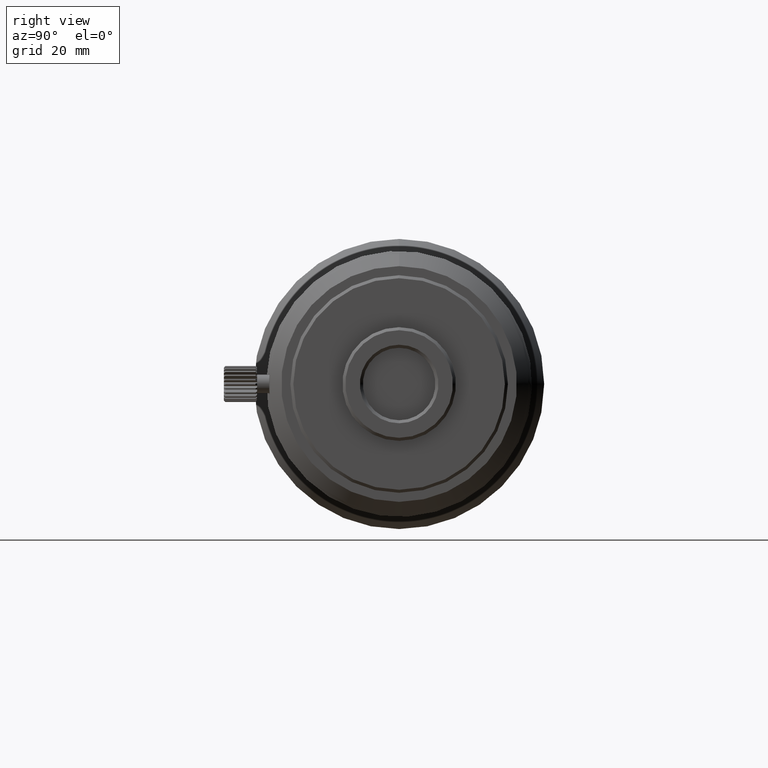
[diagram: clean part render]
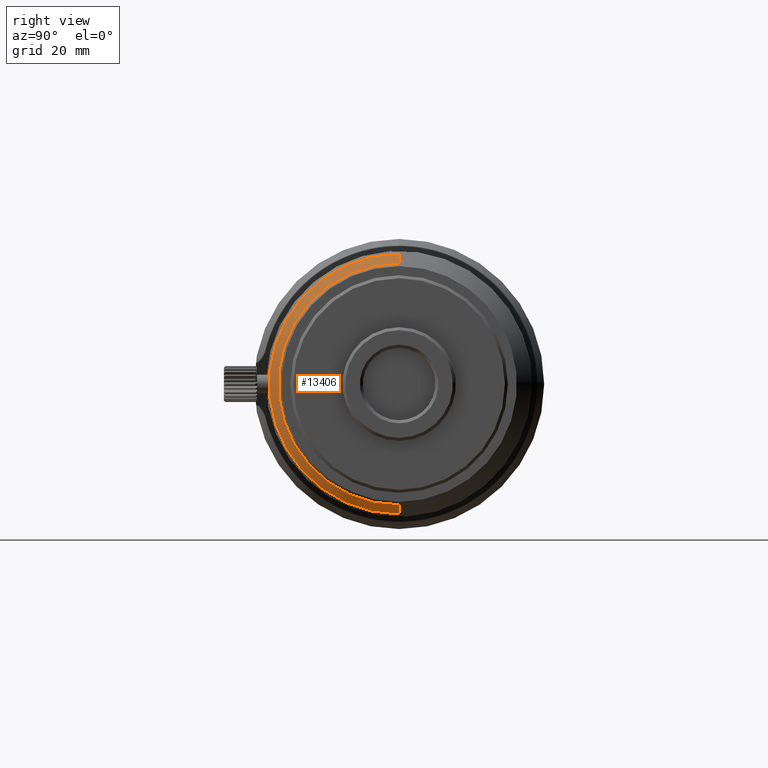
[diagram: same view with one face highlighted and labeled with its STEP entity id]
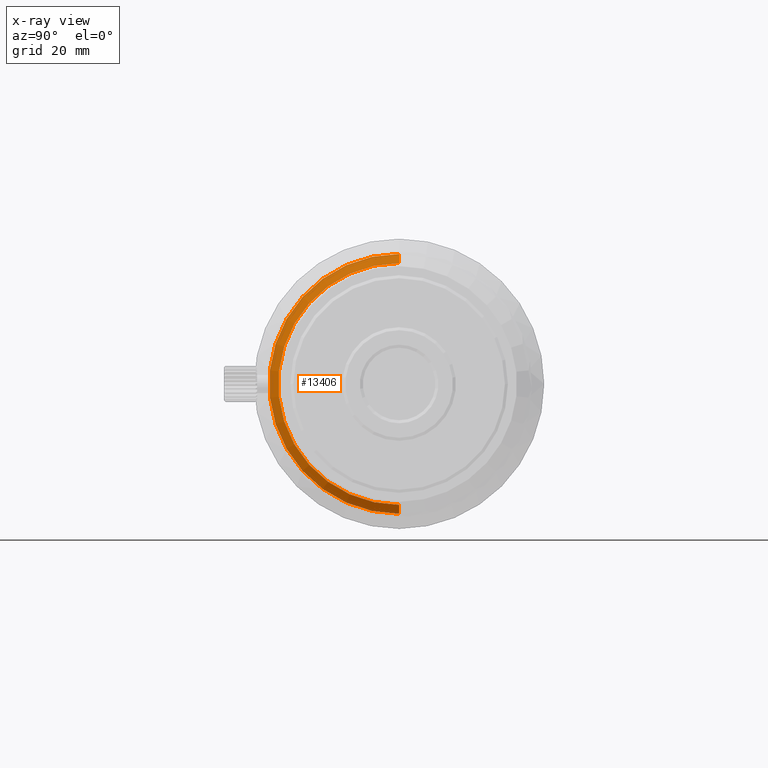
[diagram: x-ray of the same camera — body ghosted, the highlighted face saturated]
A machine part, right view. The second image highlights one B-rep face of the part: STEP entity #13406.
The next image is the same camera in x-ray: the body ghosted, the highlighted face saturated — about 0% of this face is hidden behind the body in this view.
In plain terms, the highlighted conical surface has half-angle 45 deg.
Its self-contained STEP definition (entity closure, byte-faithful):
#537 = ORIENTED_EDGE ( 'NONE', *, *, #3946, .F. ) ;
#573 = CARTESIAN_POINT ( 'NONE',  ( -9.230000000000000426, 0.000000000000000000, 0.000000000000000000 ) ) ;
#606 = VECTOR ( 'NONE', #7005, 1000.000000000000114 ) ;
#667 = ORIENTED_EDGE ( 'NONE', *, *, #5131, .T. ) ;
#945 = AXIS2_PLACEMENT_3D ( 'NONE', #573, #5041, #7279 ) ;
#1163 = ORIENTED_EDGE ( 'NONE', *, *, #7274, .T. ) ;
#1590 = CARTESIAN_POINT ( 'NONE',  ( -9.230000000000000426, 0.000000000000000000, -20.00000000000000000 ) ) ;
#1879 = CARTESIAN_POINT ( 'NONE',  ( -10.73000000000000220, 0.000000000000000000, 21.49999999999998934 ) ) ;
#2538 = EDGE_LOOP ( 'NONE', ( #537, #12807, #1163, #667 ) ) ;
#2614 = DIRECTION ( 'NONE',  ( 1.000000000000000000, -0.000000000000000000, -0.000000000000000000 ) ) ;
#3320 = LINE ( 'NONE', #3547, #606 ) ;
#3378 = DIRECTION ( 'NONE',  ( -1.000000000000000000, 0.000000000000000000, 0.000000000000000000 ) ) ;
#3547 = CARTESIAN_POINT ( 'NONE',  ( -9.230000000000000426, 2.449293598294706513E-15, -20.00000000000000000 ) ) ;
#3946 = EDGE_CURVE ( 'NONE', #9267, #12102, #3320, .T. ) ;
#4426 = CARTESIAN_POINT ( 'NONE',  ( -10.73000000000000220, 2.632990618166807657E-15, -21.49999999999998934 ) ) ;
#5041 = DIRECTION ( 'NONE',  ( 1.000000000000000000, -0.000000000000000000, -0.000000000000000000 ) ) ;
#5131 = EDGE_CURVE ( 'NONE', #13719, #12102, #10371, .T. ) ;
#6084 = CARTESIAN_POINT ( 'NONE',  ( -10.73000000000000220, 0.000000000000000000, 0.000000000000000000 ) ) ;
#6613 = CARTESIAN_POINT ( 'NONE',  ( -9.230000000000000426, 0.000000000000000000, 0.000000000000000000 ) ) ;
#7005 = DIRECTION ( 'NONE',  ( -0.7071067811865507924, 8.659560562354892183E-17, -0.7071067811865441310 ) ) ;
#7274 = EDGE_CURVE ( 'NONE', #11157, #13719, #9187, .T. ) ;
#7279 = DIRECTION ( 'NONE',  ( 0.000000000000000000, 0.000000000000000000, -1.000000000000000000 ) ) ;
#9187 = LINE ( 'NONE', #13449, #14226 ) ;
#9267 = VERTEX_POINT ( 'NONE', #1590 ) ;
#9522 = CONICAL_SURFACE ( 'NONE', #12482, 20.00000000000000000, 0.7853981633974437271 ) ;
#10371 = CIRCLE ( 'NONE', #13045, 21.49999999999998934 ) ;
#10779 = CIRCLE ( 'NONE', #945, 20.00000000000000000 ) ;
#10898 = EDGE_CURVE ( 'NONE', #11157, #9267, #10779, .T. ) ;
#11157 = VERTEX_POINT ( 'NONE', #11891 ) ;
#11891 = CARTESIAN_POINT ( 'NONE',  ( -9.230000000000000426, 2.449293598294706513E-15, 20.00000000000000000 ) ) ;
#12102 = VERTEX_POINT ( 'NONE', #4426 ) ;
#12482 = AXIS2_PLACEMENT_3D ( 'NONE', #6613, #3378, #15098 ) ;
#12618 = FACE_OUTER_BOUND ( 'NONE', #2538, .T. ) ;
#12807 = ORIENTED_EDGE ( 'NONE', *, *, #10898, .F. ) ;
#13045 = AXIS2_PLACEMENT_3D ( 'NONE', #6084, #2614, #14265 ) ;
#13406 = ADVANCED_FACE ( 'NONE', ( #12618 ), #9522, .T. ) ;
#13449 = CARTESIAN_POINT ( 'NONE',  ( -9.230000000000000426, 0.000000000000000000, 20.00000000000000000 ) ) ;
#13719 = VERTEX_POINT ( 'NONE', #1879 ) ;
#13897 = DIRECTION ( 'NONE',  ( -0.7071067811865507924, 0.000000000000000000, 0.7071067811865441310 ) ) ;
#14226 = VECTOR ( 'NONE', #13897, 1000.000000000000114 ) ;
#14265 = DIRECTION ( 'NONE',  ( 0.000000000000000000, 0.000000000000000000, -1.000000000000000000 ) ) ;
#15098 = DIRECTION ( 'NONE',  ( 0.000000000000000000, 0.000000000000000000, 1.000000000000000000 ) ) ;